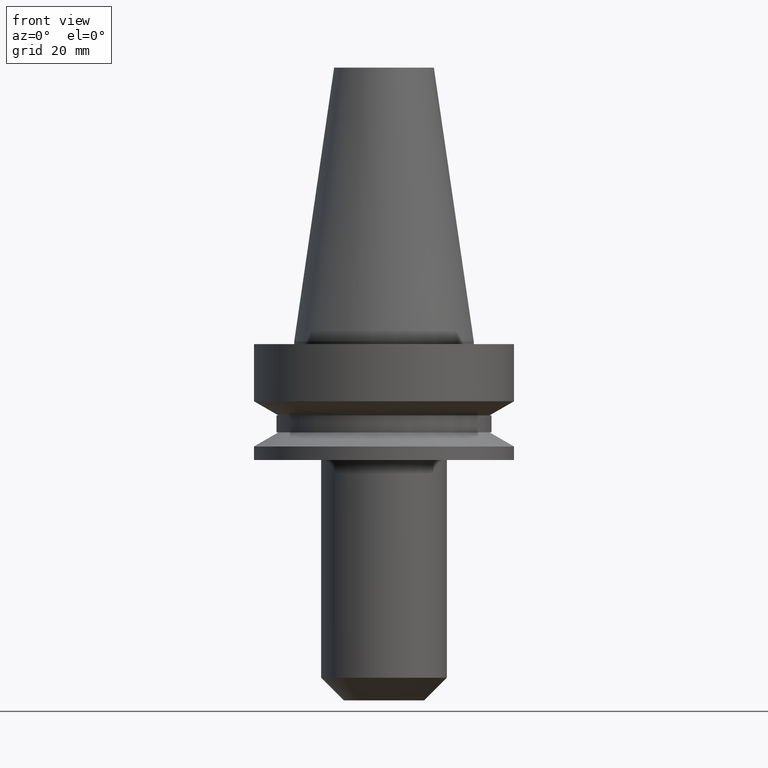
[diagram: clean part render]
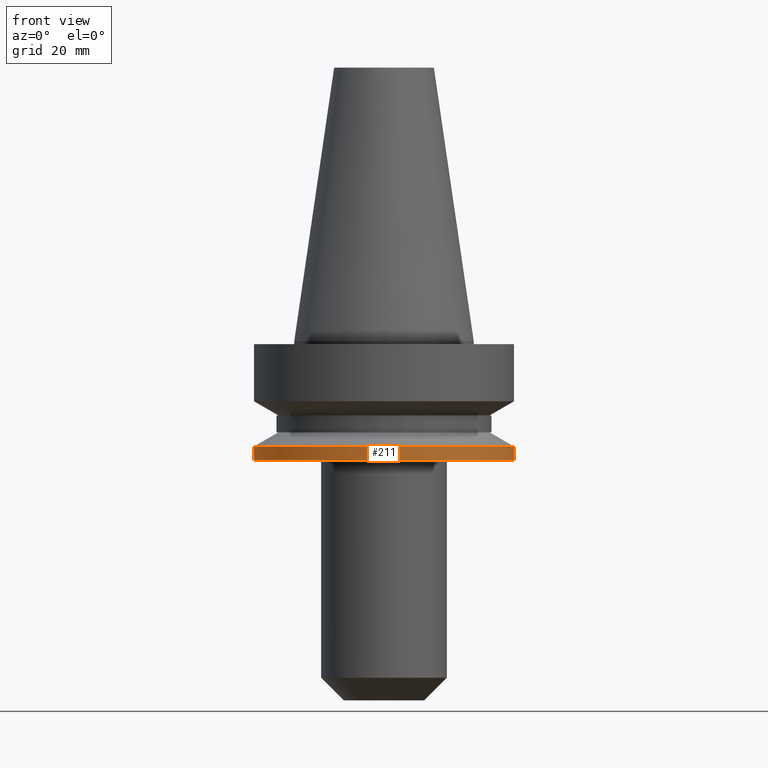
[diagram: same view with one face highlighted and labeled with its STEP entity id]
A machine part, front view. The second image highlights one B-rep face of the part: STEP entity #211.
In plain terms, the highlighted cylindrical surface (partial cylindrical patch) has radius 23 mm, axis along (-0, -0, 1).
Its self-contained STEP definition (entity closure, byte-faithful):
#11 = CARTESIAN_POINT ( 'NONE',  ( -23.00000000000000000, 2.816687638038912746E-15, -18.60014200631680836 ) ) ;
#17 = FACE_OUTER_BOUND ( 'NONE', #593, .T. ) ;
#51 = VECTOR ( 'NONE', #170, 1000.000000000000000 ) ;
#63 = DIRECTION ( 'NONE',  ( -0.000000000000000000, -0.000000000000000000, 1.000000000000000000 ) ) ;
#72 = VECTOR ( 'NONE', #604, 1000.000000000000000 ) ;
#119 = DIRECTION ( 'NONE',  ( -0.000000000000000000, -0.000000000000000000, 1.000000000000000000 ) ) ;
#129 = DIRECTION ( 'NONE',  ( 1.000000000000000000, 0.000000000000000000, 0.000000000000000000 ) ) ;
#170 = DIRECTION ( 'NONE',  ( -0.000000000000000000, -0.000000000000000000, 1.000000000000000000 ) ) ;
#182 = VERTEX_POINT ( 'NONE', #668 ) ;
#184 = DIRECTION ( 'NONE',  ( 1.000000000000000000, 0.000000000000000000, 0.000000000000000000 ) ) ;
#185 = VERTEX_POINT ( 'NONE', #11 ) ;
#192 = CARTESIAN_POINT ( 'NONE',  ( 22.99999999999999645, 0.000000000000000000, 48.39999999999998437 ) ) ;
#211 = ADVANCED_FACE ( 'NONE', ( #17 ), #485, .T. ) ;
#249 = EDGE_CURVE ( 'NONE', #182, #408, #364, .T. ) ;
#252 = CARTESIAN_POINT ( 'NONE',  ( 0.000000000000000000, 0.000000000000000000, -18.60014200631680836 ) ) ;
#265 = CARTESIAN_POINT ( 'NONE',  ( -22.99999999999999289, 2.816687638038911957E-15, -21.00000000000000355 ) ) ;
#302 = ORIENTED_EDGE ( 'NONE', *, *, #648, .F. ) ;
#364 = LINE ( 'NONE', #192, #72 ) ;
#374 = ORIENTED_EDGE ( 'NONE', *, *, #249, .T. ) ;
#406 = AXIS2_PLACEMENT_3D ( 'NONE', #722, #119, #184 ) ;
#408 = VERTEX_POINT ( 'NONE', #620 ) ;
#412 = VERTEX_POINT ( 'NONE', #265 ) ;
#452 = EDGE_CURVE ( 'NONE', #412, #185, #525, .T. ) ;
#483 = DIRECTION ( 'NONE',  ( -0.000000000000000000, -0.000000000000000000, 1.000000000000000000 ) ) ;
#485 = CYLINDRICAL_SURFACE ( 'NONE', #406, 22.99999999999999645 ) ;
#513 = ORIENTED_EDGE ( 'NONE', *, *, #452, .F. ) ;
#525 = LINE ( 'NONE', #580, #51 ) ;
#530 = AXIS2_PLACEMENT_3D ( 'NONE', #252, #483, #129 ) ;
#580 = CARTESIAN_POINT ( 'NONE',  ( -22.99999999999999645, 2.816687638038911957E-15, 48.39999999999998437 ) ) ;
#589 = AXIS2_PLACEMENT_3D ( 'NONE', #594, #63, #667 ) ;
#593 = EDGE_LOOP ( 'NONE', ( #513, #690, #374, #302 ) ) ;
#594 = CARTESIAN_POINT ( 'NONE',  ( 0.000000000000000000, 0.000000000000000000, -21.00000000000000355 ) ) ;
#604 = DIRECTION ( 'NONE',  ( -0.000000000000000000, -0.000000000000000000, 1.000000000000000000 ) ) ;
#620 = CARTESIAN_POINT ( 'NONE',  ( 23.00000000000000000, 0.000000000000000000, -18.60014200631680836 ) ) ;
#648 = EDGE_CURVE ( 'NONE', #185, #408, #694, .T. ) ;
#667 = DIRECTION ( 'NONE',  ( 1.000000000000000000, 0.000000000000000000, 0.000000000000000000 ) ) ;
#668 = CARTESIAN_POINT ( 'NONE',  ( 22.99999999999999289, 0.000000000000000000, -21.00000000000000355 ) ) ;
#690 = ORIENTED_EDGE ( 'NONE', *, *, #691, .T. ) ;
#691 = EDGE_CURVE ( 'NONE', #412, #182, #752, .T. ) ;
#694 = CIRCLE ( 'NONE', #530, 23.00000000000000000 ) ;
#722 = CARTESIAN_POINT ( 'NONE',  ( 0.000000000000000000, 0.000000000000000000, 48.39999999999998437 ) ) ;
#752 = CIRCLE ( 'NONE', #589, 22.99999999999999289 ) ;